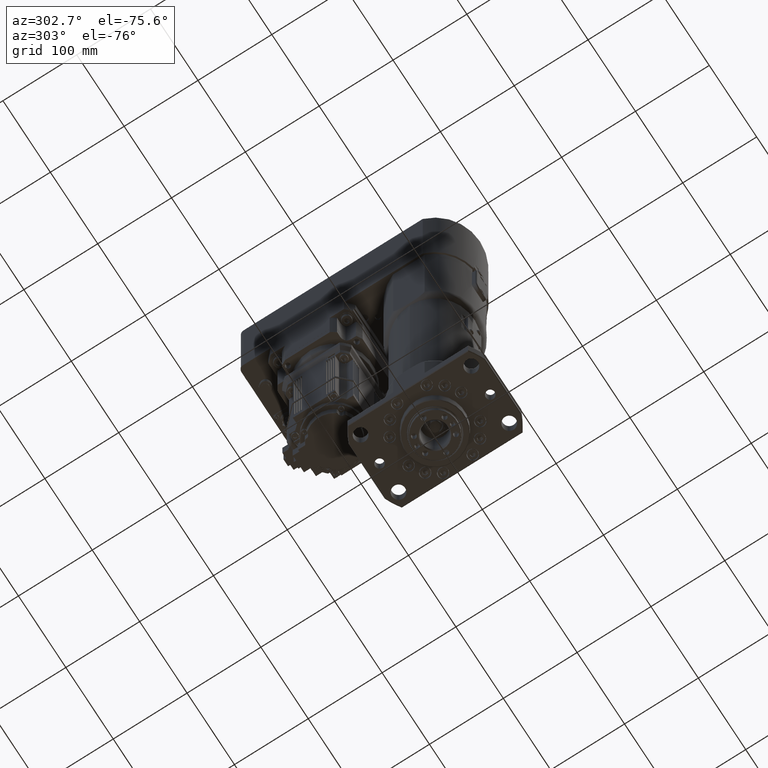
[diagram: clean part render]
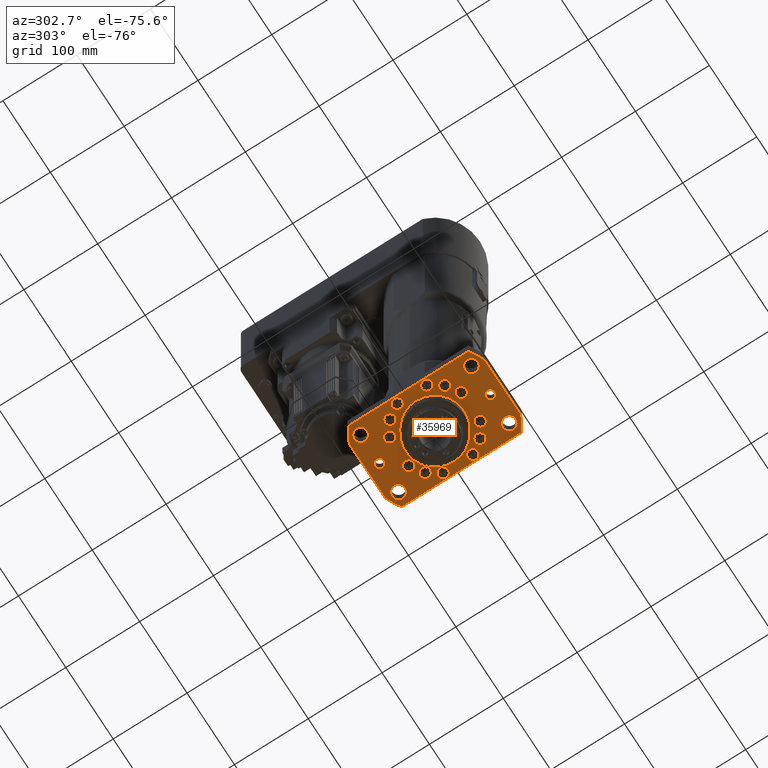
[diagram: same view with one face highlighted and labeled with its STEP entity id]
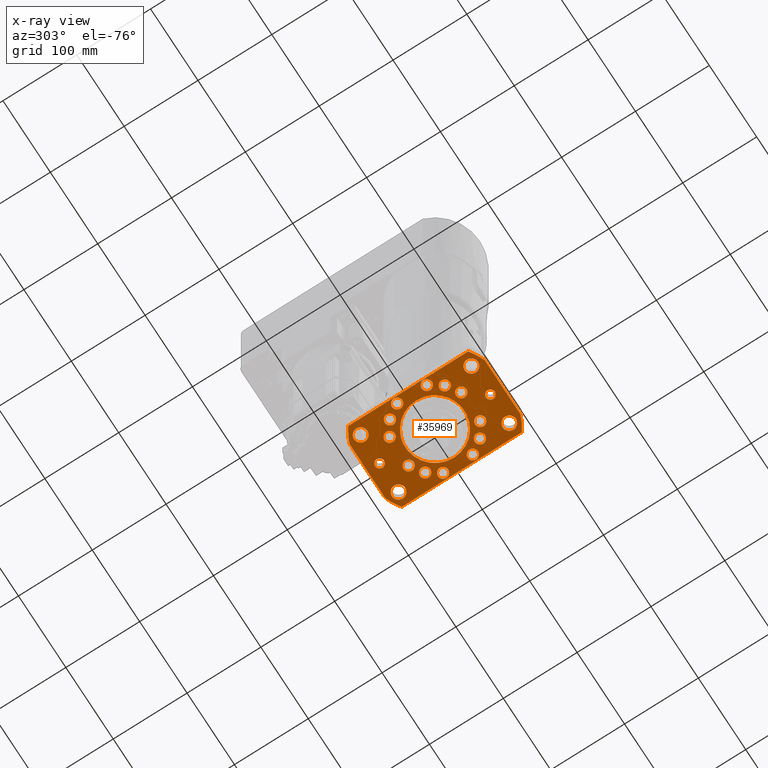
[diagram: x-ray of the same camera — body ghosted, the highlighted face saturated]
A machine part, auxiliary view. The second image highlights one B-rep face of the part: STEP entity #35969.
The next image is the same camera in x-ray: the body ghosted, the highlighted face saturated — about 0% of this face is hidden behind the body in this view.
In plain terms, the highlighted planar face has unit normal (-0, -0, -1).
Its self-contained STEP definition (entity closure, byte-faithful):
#296=FACE_BOUND('',#4597,.T.);
#297=FACE_BOUND('',#4598,.T.);
#298=FACE_BOUND('',#4599,.T.);
#299=FACE_BOUND('',#4600,.T.);
#300=FACE_BOUND('',#4601,.T.);
#301=FACE_BOUND('',#4602,.T.);
#302=FACE_BOUND('',#4603,.T.);
#303=FACE_BOUND('',#4604,.T.);
#304=FACE_BOUND('',#4605,.T.);
#305=FACE_BOUND('',#4606,.T.);
#306=FACE_BOUND('',#4607,.T.);
#307=FACE_BOUND('',#4608,.T.);
#308=FACE_BOUND('',#4609,.T.);
#309=FACE_BOUND('',#4610,.T.);
#310=FACE_BOUND('',#4611,.T.);
#311=FACE_BOUND('',#4612,.T.);
#312=FACE_BOUND('',#4613,.T.);
#313=FACE_BOUND('',#4614,.T.);
#314=FACE_BOUND('',#4615,.T.);
#962=PLANE('',#38547);
#2639=FACE_OUTER_BOUND('',#4596,.T.);
#4596=EDGE_LOOP('',(#25139,#25140,#25141,#25142,#25143,#25144,#25145,#25146));
#4597=EDGE_LOOP('',(#25147));
#4598=EDGE_LOOP('',(#25148));
#4599=EDGE_LOOP('',(#25149));
#4600=EDGE_LOOP('',(#25150));
#4601=EDGE_LOOP('',(#25151));
#4602=EDGE_LOOP('',(#25152));
#4603=EDGE_LOOP('',(#25153));
#4604=EDGE_LOOP('',(#25154,#25155));
#4605=EDGE_LOOP('',(#25156,#25157));
#4606=EDGE_LOOP('',(#25158,#25159));
#4607=EDGE_LOOP('',(#25160,#25161));
#4608=EDGE_LOOP('',(#25162,#25163));
#4609=EDGE_LOOP('',(#25164,#25165));
#4610=EDGE_LOOP('',(#25166,#25167));
#4611=EDGE_LOOP('',(#25168,#25169));
#4612=EDGE_LOOP('',(#25170,#25171));
#4613=EDGE_LOOP('',(#25172,#25173));
#4614=EDGE_LOOP('',(#25174,#25175));
#4615=EDGE_LOOP('',(#25176,#25177));
#6789=CIRCLE('',#38495,6.);
#6791=CIRCLE('',#38498,6.);
#6793=CIRCLE('',#38501,9.);
#6795=CIRCLE('',#38504,9.);
#6797=CIRCLE('',#38507,9.);
#6799=CIRCLE('',#38510,9.);
#6800=CIRCLE('',#38512,7.);
#6801=CIRCLE('',#38513,7.);
#6802=CIRCLE('',#38515,7.);
#6803=CIRCLE('',#38516,7.);
#6804=CIRCLE('',#38518,7.);
#6805=CIRCLE('',#38519,7.);
#6806=CIRCLE('',#38521,7.);
#6807=CIRCLE('',#38522,7.);
#6808=CIRCLE('',#38524,7.);
#6809=CIRCLE('',#38525,7.);
#6810=CIRCLE('',#38527,7.);
#6811=CIRCLE('',#38528,7.);
#6812=CIRCLE('',#38530,7.);
#6813=CIRCLE('',#38531,7.);
#6814=CIRCLE('',#38533,7.);
#6815=CIRCLE('',#38534,7.);
#6816=CIRCLE('',#38536,7.);
#6817=CIRCLE('',#38537,7.);
#6818=CIRCLE('',#38539,7.);
#6819=CIRCLE('',#38540,7.);
#6820=CIRCLE('',#38542,7.);
#6821=CIRCLE('',#38543,7.);
#6822=CIRCLE('',#38545,7.);
#6823=CIRCLE('',#38546,7.);
#6824=CIRCLE('',#38548,99.);
#6825=CIRCLE('',#38549,98.9999999999998);
#6826=CIRCLE('',#38550,98.9999999999998);
#6827=CIRCLE('',#38551,99.);
#6828=CIRCLE('',#38552,40.);
#8839=LINE('',#56160,#11606);
#8840=LINE('',#56164,#11607);
#8841=LINE('',#56168,#11608);
#8842=LINE('',#56171,#11609);
#11606=VECTOR('',#44188,10.);
#11607=VECTOR('',#44191,10.);
#11608=VECTOR('',#44194,10.);
#11609=VECTOR('',#44197,10.);
#14720=VERTEX_POINT('',#56050);
#14722=VERTEX_POINT('',#56056);
#14724=VERTEX_POINT('',#56062);
#14726=VERTEX_POINT('',#56068);
#14728=VERTEX_POINT('',#56074);
#14730=VERTEX_POINT('',#56080);
#14731=VERTEX_POINT('',#56084);
#14732=VERTEX_POINT('',#56085);
#14733=VERTEX_POINT('',#56090);
#14734=VERTEX_POINT('',#56091);
#14735=VERTEX_POINT('',#56096);
#14736=VERTEX_POINT('',#56097);
#14737=VERTEX_POINT('',#56102);
#14738=VERTEX_POINT('',#56103);
#14739=VERTEX_POINT('',#56108);
#14740=VERTEX_POINT('',#56109);
#14741=VERTEX_POINT('',#56114);
#14742=VERTEX_POINT('',#56115);
#14743=VERTEX_POINT('',#56120);
#14744=VERTEX_POINT('',#56121);
#14745=VERTEX_POINT('',#56126);
#14746=VERTEX_POINT('',#56127);
#14747=VERTEX_POINT('',#56132);
#14748=VERTEX_POINT('',#56133);
#14749=VERTEX_POINT('',#56138);
#14750=VERTEX_POINT('',#56139);
#14751=VERTEX_POINT('',#56144);
#14752=VERTEX_POINT('',#56145);
#14753=VERTEX_POINT('',#56150);
#14754=VERTEX_POINT('',#56151);
#14755=VERTEX_POINT('',#56156);
#14756=VERTEX_POINT('',#56157);
#14757=VERTEX_POINT('',#56159);
#14758=VERTEX_POINT('',#56161);
#14759=VERTEX_POINT('',#56163);
#14760=VERTEX_POINT('',#56165);
#14761=VERTEX_POINT('',#56167);
#14762=VERTEX_POINT('',#56169);
#14763=VERTEX_POINT('',#56172);
#18649=EDGE_CURVE('',#14720,#14720,#6789,.T.);
#18652=EDGE_CURVE('',#14722,#14722,#6791,.T.);
#18655=EDGE_CURVE('',#14724,#14724,#6793,.T.);
#18658=EDGE_CURVE('',#14726,#14726,#6795,.T.);
#18661=EDGE_CURVE('',#14728,#14728,#6797,.T.);
#18664=EDGE_CURVE('',#14730,#14730,#6799,.T.);
#18665=EDGE_CURVE('',#14731,#14732,#6800,.T.);
#18666=EDGE_CURVE('',#14732,#14731,#6801,.T.);
#18668=EDGE_CURVE('',#14733,#14734,#6802,.T.);
#18669=EDGE_CURVE('',#14734,#14733,#6803,.T.);
#18671=EDGE_CURVE('',#14735,#14736,#6804,.T.);
#18672=EDGE_CURVE('',#14736,#14735,#6805,.T.);
#18674=EDGE_CURVE('',#14737,#14738,#6806,.T.);
#18675=EDGE_CURVE('',#14738,#14737,#6807,.T.);
#18677=EDGE_CURVE('',#14739,#14740,#6808,.T.);
#18678=EDGE_CURVE('',#14740,#14739,#6809,.T.);
#18680=EDGE_CURVE('',#14741,#14742,#6810,.T.);
#18681=EDGE_CURVE('',#14742,#14741,#6811,.T.);
#18683=EDGE_CURVE('',#14743,#14744,#6812,.T.);
#18684=EDGE_CURVE('',#14744,#14743,#6813,.T.);
#18686=EDGE_CURVE('',#14745,#14746,#6814,.T.);
#18687=EDGE_CURVE('',#14746,#14745,#6815,.T.);
#18689=EDGE_CURVE('',#14747,#14748,#6816,.T.);
#18690=EDGE_CURVE('',#14748,#14747,#6817,.T.);
#18692=EDGE_CURVE('',#14749,#14750,#6818,.T.);
#18693=EDGE_CURVE('',#14750,#14749,#6819,.T.);
#18695=EDGE_CURVE('',#14751,#14752,#6820,.T.);
#18696=EDGE_CURVE('',#14752,#14751,#6821,.T.);
#18698=EDGE_CURVE('',#14753,#14754,#6822,.T.);
#18699=EDGE_CURVE('',#14754,#14753,#6823,.T.);
#18701=EDGE_CURVE('',#14755,#14756,#6824,.T.);
#18702=EDGE_CURVE('',#14757,#14755,#8839,.T.);
#18703=EDGE_CURVE('',#14758,#14757,#6825,.T.);
#18704=EDGE_CURVE('',#14759,#14758,#8840,.T.);
#18705=EDGE_CURVE('',#14760,#14759,#6826,.T.);
#18706=EDGE_CURVE('',#14761,#14760,#8841,.T.);
#18707=EDGE_CURVE('',#14762,#14761,#6827,.T.);
#18708=EDGE_CURVE('',#14756,#14762,#8842,.T.);
#18709=EDGE_CURVE('',#14763,#14763,#6828,.T.);
#25139=ORIENTED_EDGE('',*,*,#18701,.F.);
#25140=ORIENTED_EDGE('',*,*,#18702,.F.);
#25141=ORIENTED_EDGE('',*,*,#18703,.F.);
#25142=ORIENTED_EDGE('',*,*,#18704,.F.);
#25143=ORIENTED_EDGE('',*,*,#18705,.F.);
#25144=ORIENTED_EDGE('',*,*,#18706,.F.);
#25145=ORIENTED_EDGE('',*,*,#18707,.F.);
#25146=ORIENTED_EDGE('',*,*,#18708,.F.);
#25147=ORIENTED_EDGE('',*,*,#18664,.T.);
#25148=ORIENTED_EDGE('',*,*,#18661,.T.);
#25149=ORIENTED_EDGE('',*,*,#18658,.T.);
#25150=ORIENTED_EDGE('',*,*,#18655,.T.);
#25151=ORIENTED_EDGE('',*,*,#18652,.T.);
#25152=ORIENTED_EDGE('',*,*,#18649,.T.);
#25153=ORIENTED_EDGE('',*,*,#18709,.T.);
#25154=ORIENTED_EDGE('',*,*,#18665,.T.);
#25155=ORIENTED_EDGE('',*,*,#18666,.T.);
#25156=ORIENTED_EDGE('',*,*,#18668,.T.);
#25157=ORIENTED_EDGE('',*,*,#18669,.T.);
#25158=ORIENTED_EDGE('',*,*,#18671,.T.);
#25159=ORIENTED_EDGE('',*,*,#18672,.T.);
#25160=ORIENTED_EDGE('',*,*,#18674,.T.);
#25161=ORIENTED_EDGE('',*,*,#18675,.T.);
#25162=ORIENTED_EDGE('',*,*,#18677,.T.);
#25163=ORIENTED_EDGE('',*,*,#18678,.T.);
#25164=ORIENTED_EDGE('',*,*,#18680,.T.);
#25165=ORIENTED_EDGE('',*,*,#18681,.T.);
#25166=ORIENTED_EDGE('',*,*,#18683,.T.);
#25167=ORIENTED_EDGE('',*,*,#18684,.T.);
#25168=ORIENTED_EDGE('',*,*,#18686,.T.);
#25169=ORIENTED_EDGE('',*,*,#18687,.T.);
#25170=ORIENTED_EDGE('',*,*,#18689,.T.);
#25171=ORIENTED_EDGE('',*,*,#18690,.T.);
#25172=ORIENTED_EDGE('',*,*,#18692,.T.);
#25173=ORIENTED_EDGE('',*,*,#18693,.T.);
#25174=ORIENTED_EDGE('',*,*,#18695,.T.);
#25175=ORIENTED_EDGE('',*,*,#18696,.T.);
#25176=ORIENTED_EDGE('',*,*,#18698,.T.);
#25177=ORIENTED_EDGE('',*,*,#18699,.T.);
#35969=ADVANCED_FACE('',(#2639,#296,#297,#298,#299,#300,#301,#302,#303,
#304,#305,#306,#307,#308,#309,#310,#311,#312,#313,#314),#962,.T.);
#38495=AXIS2_PLACEMENT_3D('',#56052,#44063,#44064);
#38498=AXIS2_PLACEMENT_3D('',#56058,#44070,#44071);
#38501=AXIS2_PLACEMENT_3D('',#56064,#44077,#44078);
#38504=AXIS2_PLACEMENT_3D('',#56070,#44084,#44085);
#38507=AXIS2_PLACEMENT_3D('',#56076,#44091,#44092);
#38510=AXIS2_PLACEMENT_3D('',#56082,#44098,#44099);
#38512=AXIS2_PLACEMENT_3D('',#56086,#44102,#44103);
#38513=AXIS2_PLACEMENT_3D('',#56087,#44104,#44105);
#38515=AXIS2_PLACEMENT_3D('',#56092,#44109,#44110);
#38516=AXIS2_PLACEMENT_3D('',#56093,#44111,#44112);
#38518=AXIS2_PLACEMENT_3D('',#56098,#44116,#44117);
#38519=AXIS2_PLACEMENT_3D('',#56099,#44118,#44119);
#38521=AXIS2_PLACEMENT_3D('',#56104,#44123,#44124);
#38522=AXIS2_PLACEMENT_3D('',#56105,#44125,#44126);
#38524=AXIS2_PLACEMENT_3D('',#56110,#44130,#44131);
#38525=AXIS2_PLACEMENT_3D('',#56111,#44132,#44133);
#38527=AXIS2_PLACEMENT_3D('',#56116,#44137,#44138);
#38528=AXIS2_PLACEMENT_3D('',#56117,#44139,#44140);
#38530=AXIS2_PLACEMENT_3D('',#56122,#44144,#44145);
#38531=AXIS2_PLACEMENT_3D('',#56123,#44146,#44147);
#38533=AXIS2_PLACEMENT_3D('',#56128,#44151,#44152);
#38534=AXIS2_PLACEMENT_3D('',#56129,#44153,#44154);
#38536=AXIS2_PLACEMENT_3D('',#56134,#44158,#44159);
#38537=AXIS2_PLACEMENT_3D('',#56135,#44160,#44161);
#38539=AXIS2_PLACEMENT_3D('',#56140,#44165,#44166);
#38540=AXIS2_PLACEMENT_3D('',#56141,#44167,#44168);
#38542=AXIS2_PLACEMENT_3D('',#56146,#44172,#44173);
#38543=AXIS2_PLACEMENT_3D('',#56147,#44174,#44175);
#38545=AXIS2_PLACEMENT_3D('',#56152,#44179,#44180);
#38546=AXIS2_PLACEMENT_3D('',#56153,#44181,#44182);
#38547=AXIS2_PLACEMENT_3D('',#56155,#44184,#44185);
#38548=AXIS2_PLACEMENT_3D('',#56158,#44186,#44187);
#38549=AXIS2_PLACEMENT_3D('',#56162,#44189,#44190);
#38550=AXIS2_PLACEMENT_3D('',#56166,#44192,#44193);
#38551=AXIS2_PLACEMENT_3D('',#56170,#44195,#44196);
#38552=AXIS2_PLACEMENT_3D('',#56173,#44198,#44199);
#44063=DIRECTION('center_axis',(2.46941931925367E-16,7.03154948225545E-29,
1.));
#44064=DIRECTION('ref_axis',(-1.,3.43055726448117E-12,2.46941931925367E-16));
#44070=DIRECTION('center_axis',(2.46941931925367E-16,7.03154948225545E-29,
1.));
#44071=DIRECTION('ref_axis',(-1.,3.43055726448117E-12,2.46941931925367E-16));
#44077=DIRECTION('center_axis',(2.46941931925367E-16,7.03154948225545E-29,
1.));
#44078=DIRECTION('ref_axis',(-1.,3.43055726448117E-12,2.46941931925367E-16));
#44084=DIRECTION('center_axis',(2.46941931925367E-16,7.03154948225545E-29,
1.));
#44085=DIRECTION('ref_axis',(-1.,3.43055726448117E-12,2.46941931925367E-16));
#44091=DIRECTION('center_axis',(2.46941931925367E-16,7.03154948225545E-29,
1.));
#44092=DIRECTION('ref_axis',(-1.,3.43055726448117E-12,2.46941931925367E-16));
#44098=DIRECTION('center_axis',(2.46941931925367E-16,7.03154948225545E-29,
1.));
#44099=DIRECTION('ref_axis',(-1.,3.43055726448117E-12,2.46941931925367E-16));
#44102=DIRECTION('center_axis',(2.46941931925367E-16,7.03154948225545E-29,
1.));
#44103=DIRECTION('ref_axis',(1.,-3.43055726448117E-12,-2.46941931925367E-16));
#44104=DIRECTION('center_axis',(2.46941931925367E-16,7.03154948225545E-29,
1.));
#44105=DIRECTION('ref_axis',(1.,-3.43055726448117E-12,-2.46941931925367E-16));
#44109=DIRECTION('center_axis',(2.46941931925367E-16,7.03154948225545E-29,
1.));
#44110=DIRECTION('ref_axis',(0.923879532509974,-0.382683432368259,-2.28144596624291E-16));
#44111=DIRECTION('center_axis',(2.46941931925367E-16,7.03154948225545E-29,
1.));
#44112=DIRECTION('ref_axis',(0.923879532509974,-0.382683432368259,-2.28144596624291E-16));
#44116=DIRECTION('center_axis',(2.46941931925367E-16,7.03154948225545E-29,
1.));
#44117=DIRECTION('ref_axis',(0.707106781184122,-0.707106781188973,-1.74614314623085E-16));
#44118=DIRECTION('center_axis',(2.46941931925367E-16,7.03154948225545E-29,
1.));
#44119=DIRECTION('ref_axis',(0.707106781184122,-0.707106781188973,-1.74614314623085E-16));
#44123=DIRECTION('center_axis',(2.46941931925367E-16,7.03154948225545E-29,
1.));
#44124=DIRECTION('ref_axis',(-3.43049603214121E-12,-1.,9.17448812461811E-28));
#44125=DIRECTION('center_axis',(2.46941931925367E-16,7.03154948225545E-29,
1.));
#44126=DIRECTION('ref_axis',(-3.43049603214121E-12,-1.,9.17448812461811E-28));
#44130=DIRECTION('center_axis',(2.46941931925367E-16,7.03154948225545E-29,
1.));
#44131=DIRECTION('ref_axis',(-1.,3.43043479980125E-12,2.46941931925367E-16));
#44132=DIRECTION('center_axis',(2.46941931925367E-16,7.03154948225545E-29,
1.));
#44133=DIRECTION('ref_axis',(-1.,3.43043479980125E-12,2.46941931925367E-16));
#44137=DIRECTION('center_axis',(2.46941931925367E-16,7.03154948225545E-29,
1.));
#44138=DIRECTION('ref_axis',(3.43037356746129E-12,1.,-9.1741857079716E-28));
#44139=DIRECTION('center_axis',(2.46941931925367E-16,7.03154948225545E-29,
1.));
#44140=DIRECTION('ref_axis',(3.43037356746129E-12,1.,-9.1741857079716E-28));
#44144=DIRECTION('center_axis',(2.46941931925367E-16,7.03154948225545E-29,
1.));
#44145=DIRECTION('ref_axis',(-0.382683432368259,-0.923879532509974,9.45005861049134E-17));
#44146=DIRECTION('center_axis',(2.46941931925367E-16,7.03154948225545E-29,
1.));
#44147=DIRECTION('ref_axis',(-0.382683432368259,-0.923879532509974,9.45005861049134E-17));
#44151=DIRECTION('center_axis',(2.46941931925367E-16,7.03154948225545E-29,
1.));
#44152=DIRECTION('ref_axis',(-0.707106781188973,-0.707106781184122,1.74614314624383E-16));
#44153=DIRECTION('center_axis',(2.46941931925367E-16,7.03154948225545E-29,
1.));
#44154=DIRECTION('ref_axis',(-0.707106781188973,-0.707106781184122,1.74614314624383E-16));
#44158=DIRECTION('center_axis',(2.46941931925367E-16,7.03154948225545E-29,
1.));
#44159=DIRECTION('ref_axis',(-0.923879532509974,0.382683432368259,2.28144596624291E-16));
#44160=DIRECTION('center_axis',(2.46941931925367E-16,7.03154948225545E-29,
1.));
#44161=DIRECTION('ref_axis',(-0.923879532509974,0.382683432368259,2.28144596624291E-16));
#44165=DIRECTION('center_axis',(2.46941931925367E-16,7.03154948225545E-29,
1.));
#44166=DIRECTION('ref_axis',(-0.707106781184122,0.707106781188973,1.74614314623085E-16));
#44167=DIRECTION('center_axis',(2.46941931925367E-16,7.03154948225545E-29,
1.));
#44168=DIRECTION('ref_axis',(-0.707106781184122,0.707106781188973,1.74614314623085E-16));
#44172=DIRECTION('center_axis',(2.46941931925367E-16,7.03154948225545E-29,
1.));
#44173=DIRECTION('ref_axis',(0.382683432368259,0.923879532509974,-9.45005861049134E-17));
#44174=DIRECTION('center_axis',(2.46941931925367E-16,7.03154948225545E-29,
1.));
#44175=DIRECTION('ref_axis',(0.382683432368259,0.923879532509974,-9.45005861049134E-17));
#44179=DIRECTION('center_axis',(2.46941931925367E-16,7.03154948225545E-29,
1.));
#44180=DIRECTION('ref_axis',(0.707106781188973,0.707106781184122,-1.74614314624383E-16));
#44181=DIRECTION('center_axis',(2.46941931925367E-16,7.03154948225545E-29,
1.));
#44182=DIRECTION('ref_axis',(0.707106781188973,0.707106781184122,-1.74614314624383E-16));
#44184=DIRECTION('center_axis',(-2.46941931925367E-16,-7.03154948225545E-29,
-1.));
#44185=DIRECTION('ref_axis',(1.,-3.43055726448117E-12,-2.46941931925367E-16));
#44186=DIRECTION('center_axis',(2.46941931925367E-16,7.03154948225545E-29,
1.));
#44187=DIRECTION('ref_axis',(-0.379967103842444,-0.924999999998695,9.38298106910048E-17));
#44188=DIRECTION('',(-3.43055726448117E-12,-1.,9.17463933294137E-28));
#44189=DIRECTION('center_axis',(2.46941931925367E-16,7.03154948225545E-29,
1.));
#44190=DIRECTION('ref_axis',(-0.574999999997198,0.818153408599648,1.41991610856337E-16));
#44191=DIRECTION('',(-1.,3.4303235130825E-12,2.46941931925367E-16));
#44192=DIRECTION('center_axis',(2.46941931925367E-16,7.03154948225545E-29,
1.));
#44193=DIRECTION('ref_axis',(0.379967103842445,0.924999999998695,-9.38298106910049E-17));
#44194=DIRECTION('',(3.43044870557151E-12,1.,-9.17437125547258E-28));
#44195=DIRECTION('center_axis',(2.46941931925367E-16,7.03154948225545E-29,
1.));
#44196=DIRECTION('ref_axis',(0.574999999997199,-0.818153408599647,-1.41991610856337E-16));
#44197=DIRECTION('',(1.,-3.43055726448117E-12,-2.46941931925367E-16));
#44198=DIRECTION('center_axis',(2.46941931925367E-16,7.03154948225545E-29,
1.));
#44199=DIRECTION('ref_axis',(-1.,3.43055726448117E-12,2.46941931925367E-16));
#56050=CARTESIAN_POINT('',(5.99999999974264,-74.9999999998913,2.04281036531029E-13));
#56052=CARTESIAN_POINT('Origin',(-2.57358937254293E-10,-74.9999999998707,
2.04281036531029E-13));
#56056=CARTESIAN_POINT('',(6.00000000025723,75.0000000001087,2.04281036531029E-13));
#56058=CARTESIAN_POINT('Origin',(2.57224652417882E-10,75.0000000001293,
2.04281036531029E-13));
#56062=CARTESIAN_POINT('',(-31.0000000002578,-74.9999999997644,2.1316282072803E-13));
#56064=CARTESIAN_POINT('Origin',(-40.0000000002578,-74.9999999997335,2.1316282072803E-13));
#56068=CARTESIAN_POINT('',(48.9999999997422,-75.0000000000388,1.90958360235527E-13));
#56070=CARTESIAN_POINT('Origin',(39.9999999997422,-75.0000000000079,1.95399252334028E-13));
#56074=CARTESIAN_POINT('',(-30.9999999997432,75.0000000002356,2.1316282072803E-13));
#56076=CARTESIAN_POINT('Origin',(-39.9999999997432,75.0000000002665,2.1316282072803E-13));
#56080=CARTESIAN_POINT('',(49.0000000002568,74.9999999999612,1.90958360235527E-13));
#56082=CARTESIAN_POINT('Origin',(40.0000000002568,74.9999999999921,1.95399252334028E-13));
#56084=CARTESIAN_POINT('',(-13.0908801993337,-48.503675456669,2.08721928629529E-13));
#56085=CARTESIAN_POINT('',(-27.0908801993337,-48.503675456621,2.1094237467878E-13));
#56086=CARTESIAN_POINT('Origin',(-20.0908801993337,-48.503675456645,2.08721928629529E-13));
#56087=CARTESIAN_POINT('Origin',(-20.0908801993337,-48.503675456645,2.08721928629529E-13));
#56090=CARTESIAN_POINT('',(-30.6559492848516,-39.8018900386155,2.1316282072803E-13));
#56091=CARTESIAN_POINT('',(-43.5902627399913,-34.4443219854599,2.1538326677728E-13));
#56092=CARTESIAN_POINT('Origin',(-37.1231060124215,-37.1231060120377,2.1316282072803E-13));
#56093=CARTESIAN_POINT('Origin',(-37.1231060124215,-37.1231060120377,2.1316282072803E-13));
#56096=CARTESIAN_POINT('',(-43.5539279886232,-25.0406276671948,2.1316282072803E-13));
#56097=CARTESIAN_POINT('',(-53.4534229252009,-15.1411327305492,2.18158824338843E-13));
#56098=CARTESIAN_POINT('Origin',(-48.503675456912,-20.090880198872,2.17603712826531E-13));
#56099=CARTESIAN_POINT('Origin',(-48.503675456912,-20.090880198872,2.17603712826531E-13));
#56102=CARTESIAN_POINT('',(-48.5036754567983,13.0908801994629,2.17603712826531E-13));
#56103=CARTESIAN_POINT('',(-48.5036754567503,27.0908801994629,2.17048601314218E-13));
#56104=CARTESIAN_POINT('Origin',(-48.5036754567743,20.0908801994629,2.17603712826531E-13));
#56105=CARTESIAN_POINT('Origin',(-48.5036754567743,20.0908801994629,2.17603712826531E-13));
#56108=CARTESIAN_POINT('',(13.0908801993336,48.5036754569275,1.99840144432528E-13));
#56109=CARTESIAN_POINT('',(27.0908801993336,48.5036754568795,1.98729921407903E-13));
#56110=CARTESIAN_POINT('Origin',(20.0908801993336,48.5036754569035,1.99840144432528E-13));
#56111=CARTESIAN_POINT('Origin',(20.0908801993336,48.5036754569035,1.99840144432528E-13));
#56114=CARTESIAN_POINT('',(48.5036754567982,-13.0908801992044,1.90958360235527E-13));
#56115=CARTESIAN_POINT('',(48.5036754567502,-27.0908801992044,1.90958360235527E-13));
#56116=CARTESIAN_POINT('Origin',(48.5036754567742,-20.0908801992044,1.90958360235527E-13));
#56117=CARTESIAN_POINT('Origin',(48.5036754567742,-20.0908801992044,1.90958360235527E-13));
#56120=CARTESIAN_POINT('',(-39.8018900387448,30.6559492849808,2.1316282072803E-13));
#56121=CARTESIAN_POINT('',(-34.4443219855892,43.5902627401205,2.1316282072803E-13));
#56122=CARTESIAN_POINT('Origin',(-37.123106012167,37.1231060125506,2.1316282072803E-13));
#56123=CARTESIAN_POINT('Origin',(-37.123106012167,37.1231060125506,2.1316282072803E-13));
#56126=CARTESIAN_POINT('',(-25.0406276673241,43.5539279887524,2.08721928629529E-13));
#56127=CARTESIAN_POINT('',(-15.1411327306785,53.4534229253301,2.08166817117217E-13));
#56128=CARTESIAN_POINT('Origin',(-20.0908801990013,48.5036754570412,2.08721928629529E-13));
#56129=CARTESIAN_POINT('Origin',(-20.0908801990013,48.5036754570412,2.08721928629529E-13));
#56132=CARTESIAN_POINT('',(30.6559492848515,39.801890038874,1.95399252334028E-13));
#56133=CARTESIAN_POINT('',(43.5902627399911,34.4443219857184,1.94289029309402E-13));
#56134=CARTESIAN_POINT('Origin',(37.1231060124213,37.1231060122962,1.95399252334028E-13));
#56135=CARTESIAN_POINT('Origin',(37.1231060124213,37.1231060122962,1.95399252334028E-13));
#56138=CARTESIAN_POINT('',(43.553927988623,25.0406276674533,1.95399252334028E-13));
#56139=CARTESIAN_POINT('',(53.4534229252007,15.1411327308077,1.89848137210902E-13));
#56140=CARTESIAN_POINT('Origin',(48.5036754569119,20.0908801991305,1.90958360235527E-13));
#56141=CARTESIAN_POINT('Origin',(48.5036754569119,20.0908801991305,1.90958360235527E-13));
#56144=CARTESIAN_POINT('',(39.8018900387447,-30.6559492847223,1.95399252334028E-13));
#56145=CARTESIAN_POINT('',(34.4443219855891,-43.5902627398619,1.96509475358653E-13));
#56146=CARTESIAN_POINT('Origin',(37.1231060121669,-37.1231060122921,1.95399252334028E-13));
#56147=CARTESIAN_POINT('Origin',(37.1231060121669,-37.1231060122921,1.95399252334028E-13));
#56150=CARTESIAN_POINT('',(25.040627667324,-43.5539279884938,1.99840144432528E-13));
#56151=CARTESIAN_POINT('',(15.1411327306783,-53.4534229250715,2.01505478969466E-13));
#56152=CARTESIAN_POINT('Origin',(20.0908801990012,-48.5036754567827,1.99840144432528E-13));
#56153=CARTESIAN_POINT('Origin',(20.0908801990012,-48.5036754567827,1.99840144432528E-13));
#56155=CARTESIAN_POINT('Origin',(-5.23988180869382E-13,1.29287402775633E-10,
2.04281036531029E-13));
#56156=CARTESIAN_POINT('',(-56.5000000002794,-81.2942187363127,2.17603712826531E-13));
#56157=CARTESIAN_POINT('',(-37.798809505377,-91.4999999997411,2.1316282072803E-13));
#56158=CARTESIAN_POINT('Origin',(-7.60242024030657E-14,1.29051820793069E-10,
2.04281036531029E-13));
#56159=CARTESIAN_POINT('',(-56.4999999997217,81.2942187369588,2.17603712826531E-13));
#56160=CARTESIAN_POINT('',(-56.5000000001409,-40.9076704295608,2.17603712826531E-13));
#56161=CARTESIAN_POINT('',(-37.7988095047491,91.500000000259,2.1316282072803E-13));
#56162=CARTESIAN_POINT('Origin',(-1.02669554991998E-13,1.29655782118465E-10,
2.04281036531029E-13));
#56163=CARTESIAN_POINT('',(37.7988095053758,91.4999999999996,1.95399252334028E-13));
#56164=CARTESIAN_POINT('',(-18.99835519165,91.5000000001945,2.08721928629529E-13));
#56165=CARTESIAN_POINT('',(56.5000000002784,81.2942187365712,1.90958360235527E-13));
#56166=CARTESIAN_POINT('Origin',(-9.10911916919173E-13,1.29638018550074E-10,
2.04281036531029E-13));
#56167=CARTESIAN_POINT('',(56.4999999997206,-81.2942187367003,1.90958360235527E-13));
#56168=CARTESIAN_POINT('',(56.5000000001398,40.9076704298193,1.90958360235527E-13));
#56169=CARTESIAN_POINT('',(37.7988095047481,-91.5000000000004,1.95399252334028E-13));
#56170=CARTESIAN_POINT('Origin',(-1.03303644963002E-12,1.29030726555604E-10,
2.04281036531029E-13));
#56171=CARTESIAN_POINT('',(18.9983551916489,-91.4999999999359,1.99840144432528E-13));
#56172=CARTESIAN_POINT('',(39.999999999999,-7.96017993942274E-12,1.95399252334028E-13));
#56173=CARTESIAN_POINT('Origin',(-9.76415075373363E-13,1.29257212052627E-10,
2.04281036531029E-13));